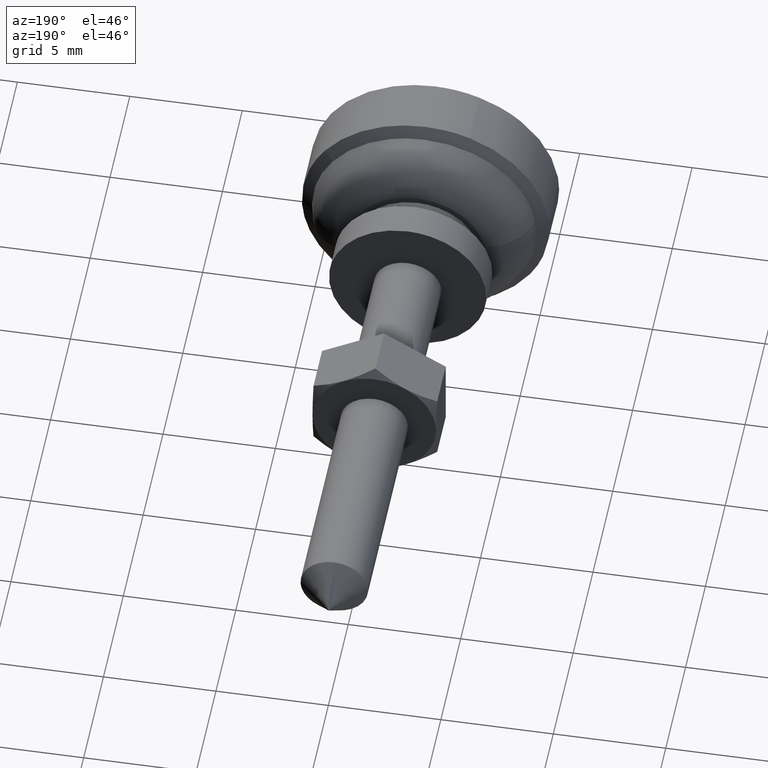
[diagram: clean part render]
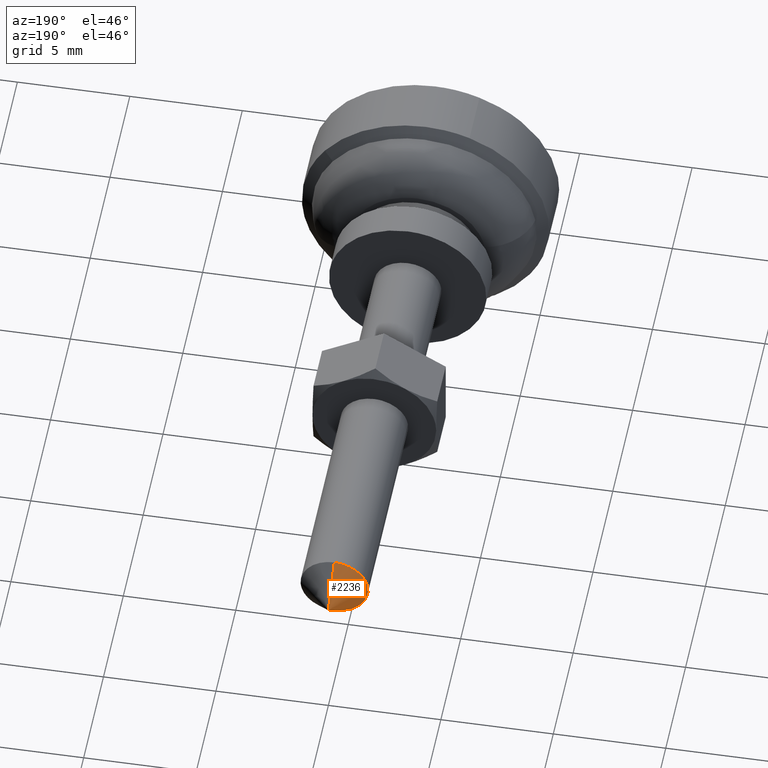
[diagram: same view with one face highlighted and labeled with its STEP entity id]
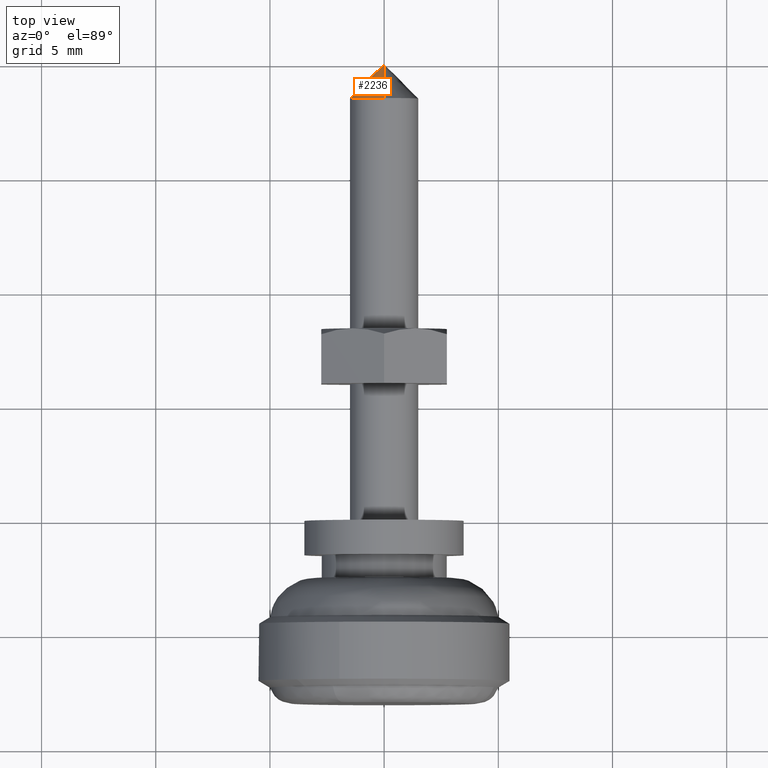
[diagram: same view with one face highlighted and labeled with its STEP entity id]
A machine part, auxiliary view. The second image highlights one B-rep face of the part: STEP entity #2236.
A second angle (top view) of the same face is appended — the face is thin or edge-on in the first view.
In plain terms, the highlighted face is a freeform B-spline surface patch.
Its self-contained STEP definition (entity closure, byte-faithful):
#751=CARTESIAN_POINT('',(18.500000000000000,1.489514289541224,0.177051352021105));
#752=VERTEX_POINT('',#751);
#753=CARTESIAN_POINT('',(18.500000000000011,0.0,-1.500000000000006));
#754=VERTEX_POINT('',#753);
#755=CARTESIAN_POINT('',(18.500000000000000,1.489514289541225,0.177051352021105));
#756=CARTESIAN_POINT('',(18.500000000000004,1.500000000000000,0.088836179514213));
#757=CARTESIAN_POINT('',(18.500000000000000,1.500000000000000,0.0));
#758=CARTESIAN_POINT('',(18.500000000000000,1.500000000000000,-1.500000000000000));
#759=CARTESIAN_POINT('',(18.500000000000000,0.0,-1.500000000000000));
#767=(BOUNDED_CURVE()B_SPLINE_CURVE(2,(#755,#756,#757,#758,#759),.UNSPECIFIED.,.F.,.U.)B_SPLINE_CURVE_WITH_KNOTS((3,2,3),(0.459124947014965,0.500000000000000,1.0),.UNSPECIFIED.)CURVE()GEOMETRIC_REPRESENTATION_ITEM()RATIONAL_B_SPLINE_CURVE((0.956026754171888,0.976055948324085,1.0,0.707106781186548,1.0))REPRESENTATION_ITEM(''));
#768=EDGE_CURVE('',#752,#754,#767,.T.);
#850=CARTESIAN_POINT('',(18.500000000000011,0.0,1.500000000000006));
#851=VERTEX_POINT('',#850);
#852=CARTESIAN_POINT('',(18.500000000000000,0.0,1.500000000000000));
#853=CARTESIAN_POINT('',(18.499999999999996,1.332261788862259,1.500000000000001));
#854=CARTESIAN_POINT('',(18.500000000000007,1.489514289541225,0.177051352021105));
#862=(BOUNDED_CURVE()B_SPLINE_CURVE(2,(#852,#853,#854),.UNSPECIFIED.,.F.,.U.)B_SPLINE_CURVE_WITH_KNOTS((3,3),(0.0,0.459124947014965),.UNSPECIFIED.)CURVE()GEOMETRIC_REPRESENTATION_ITEM()RATIONAL_B_SPLINE_CURVE((1.0,0.731050832862462,0.956026754171888))REPRESENTATION_ITEM(''));
#863=EDGE_CURVE('',#851,#752,#862,.T.);
#2195=CARTESIAN_POINT('',(20.0,0.0,0.0));
#2196=VERTEX_POINT('',#2195);
#2197=CARTESIAN_POINT('',(20.0,0.0,0.0));
#2198=CARTESIAN_POINT('',(18.500000000000011,0.0,1.500000000000006));
#2199=QUASI_UNIFORM_CURVE('',1,(#2197,#2198),.UNSPECIFIED.,.F.,.U.);
#2200=EDGE_CURVE('',#2196,#851,#2199,.T.);
#2204=CARTESIAN_POINT('',(20.0,0.0,0.0));
#2205=CARTESIAN_POINT('',(18.500000000000011,0.0,-1.500000000000006));
#2206=QUASI_UNIFORM_CURVE('',1,(#2204,#2205),.UNSPECIFIED.,.F.,.U.);
#2207=EDGE_CURVE('',#2196,#754,#2206,.T.);
#2212=CARTESIAN_POINT('',(20.0,0.0,0.0));
#2213=CARTESIAN_POINT('',(18.461562499999999,-0.040271598912397,-1.537910315892118));
#2214=CARTESIAN_POINT('',(20.0,0.0,0.0));
#2215=CARTESIAN_POINT('',(18.461562499999999,1.580347726439282,-1.580347726439288));
#2216=CARTESIAN_POINT('',(20.0,0.0,0.0));
#2217=CARTESIAN_POINT('',(18.461562499999999,1.537910315892118,0.040271598912392));
#2218=CARTESIAN_POINT('',(20.0,0.0,0.0));
#2219=CARTESIAN_POINT('',(18.461562499999999,1.495472905344952,1.660890924264072));
#2220=CARTESIAN_POINT('',(20.0,0.0,0.0));
#2221=CARTESIAN_POINT('',(18.461562499999999,-0.120704415083807,1.533695010615093));
#2229=(BOUNDED_SURFACE()B_SPLINE_SURFACE(1,2,((#2212,#2214,#2216,#2218,#2220),(#2213,#2215,#2217,#2219,#2221)),.UNSPECIFIED.,.F.,.F.,.U.)B_SPLINE_SURFACE_WITH_KNOTS((2,2),(3,2,3),(0.0,1.0),(0.0,1.0,2.0),.UNSPECIFIED.)GEOMETRIC_REPRESENTATION_ITEM()RATIONAL_B_SPLINE_SURFACE(((1.0,0.688354575693754,1.0,0.688354575693754,1.0),(1.0,0.688354575693754,1.0,0.688354575693754,1.0)))REPRESENTATION_ITEM('')SURFACE());
#2230=ORIENTED_EDGE('',*,*,#2207,.T.);
#2231=ORIENTED_EDGE('',*,*,#768,.F.);
#2232=ORIENTED_EDGE('',*,*,#863,.F.);
#2233=ORIENTED_EDGE('',*,*,#2200,.F.);
#2234=EDGE_LOOP('',(#2230,#2231,#2232,#2233));
#2235=FACE_OUTER_BOUND('',#2234,.T.);
#2236=ADVANCED_FACE('',(#2235),#2229,.T.);